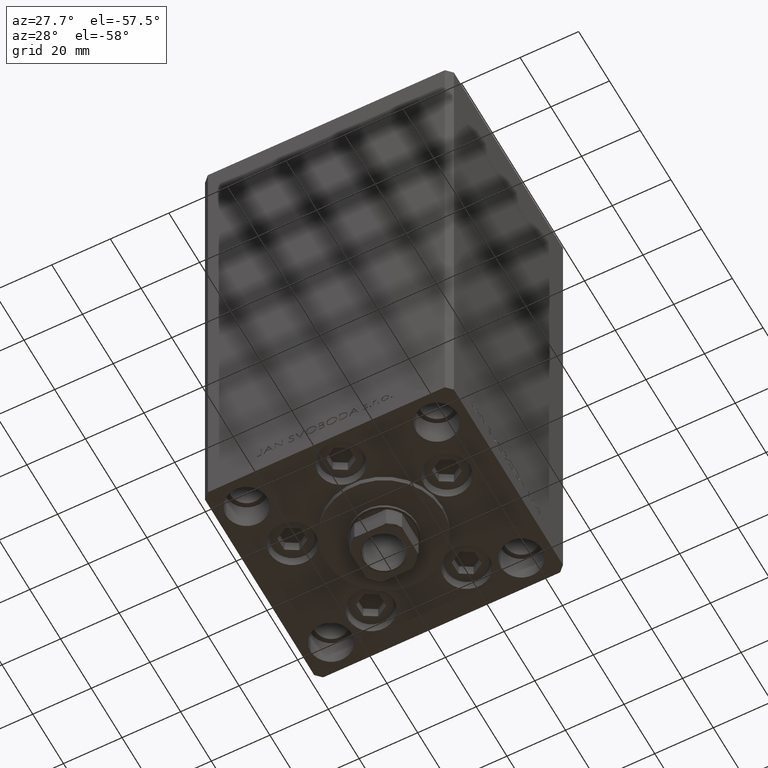
[diagram: clean part render]
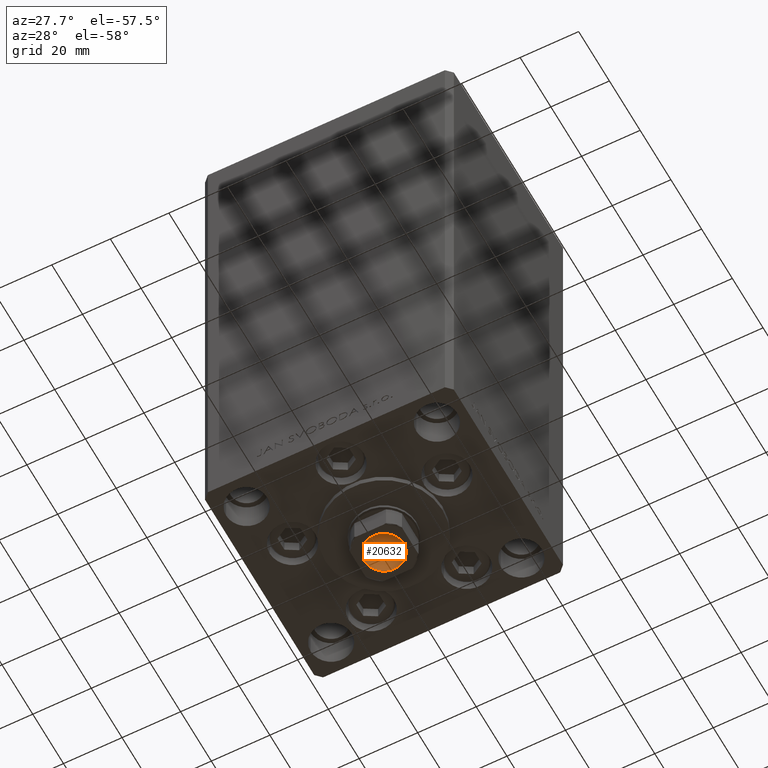
[diagram: same view with one face highlighted and labeled with its STEP entity id]
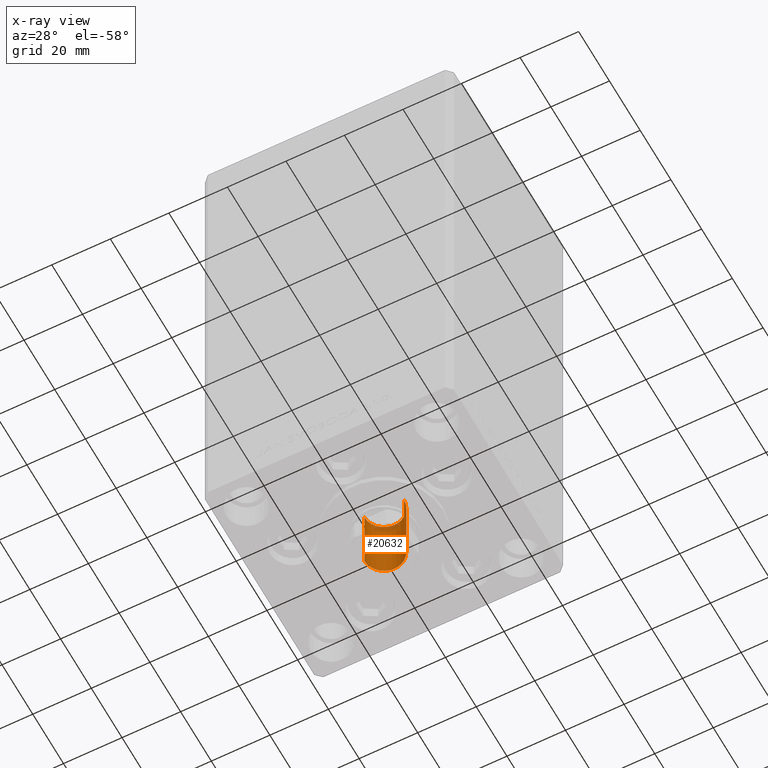
[diagram: x-ray of the same camera — body ghosted, the highlighted face saturated]
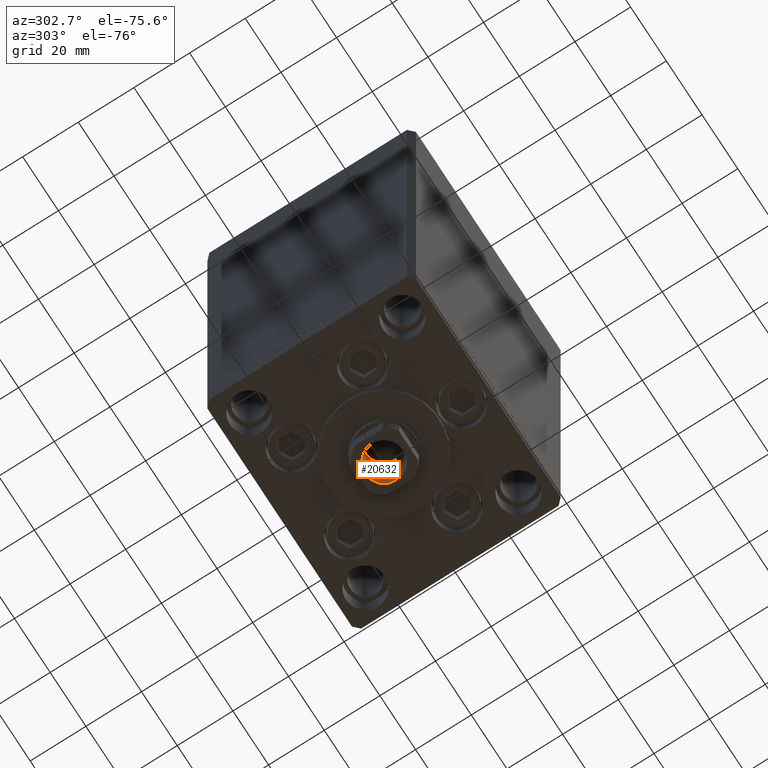
[diagram: same view with one face highlighted and labeled with its STEP entity id]
A machine part, auxiliary view. The second image highlights one B-rep face of the part: STEP entity #20632.
The next image is the same camera in x-ray: the body ghosted, the highlighted face saturated — about 7% of this face is hidden behind the body in this view.
A second angle (auxiliary view) of the same face is appended — the face is thin or edge-on in the first view.
In plain terms, the highlighted cylindrical surface (edge-blend (fillet) strip) has radius 6.75 mm, axis along (0, 0, -1).
Its self-contained STEP definition (entity closure, byte-faithful):
#116 = VECTOR ( 'NONE', #21271, 1000.000000000000000 ) ;
#507 = VERTEX_POINT ( 'NONE', #12687 ) ;
#677 = VERTEX_POINT ( 'NONE', #25546 ) ;
#1867 = AXIS2_PLACEMENT_3D ( 'NONE', #47620, #10017, #6305 ) ;
#4547 = AXIS2_PLACEMENT_3D ( 'NONE', #22274, #26723, #30448 ) ;
#4986 = DIRECTION ( 'NONE',  ( 1.000000000000000000, 0.000000000000000000, 0.000000000000000000 ) ) ;
#6305 = DIRECTION ( 'NONE',  ( 1.000000000000000000, 0.000000000000000000, 0.000000000000000000 ) ) ;
#6969 = EDGE_CURVE ( 'NONE', #507, #20376, #41394, .T. ) ;
#9183 = EDGE_CURVE ( 'NONE', #19837, #20376, #38779, .T. ) ;
#10017 = DIRECTION ( 'NONE',  ( 0.000000000000000000, 0.000000000000000000, 1.000000000000000000 ) ) ;
#10136 = LINE ( 'NONE', #44282, #116 ) ;
#12687 = CARTESIAN_POINT ( 'NONE',  ( 6.749999999999995559, 0.000000000000000000, 155.4499999999999886 ) ) ;
#18043 = ORIENTED_EDGE ( 'NONE', *, *, #6969, .T. ) ;
#19837 = VERTEX_POINT ( 'NONE', #44905 ) ;
#20376 = VERTEX_POINT ( 'NONE', #46300 ) ;
#20632 = ADVANCED_FACE ( 'NONE', ( #26489 ), #41577, .F. ) ;
#21271 = DIRECTION ( 'NONE',  ( -0.000000000000000000, -0.000000000000000000, 1.000000000000000000 ) ) ;
#22274 = CARTESIAN_POINT ( 'NONE',  ( 0.000000000000000000, 0.000000000000000000, 155.7500000000000000 ) ) ;
#24650 = ORIENTED_EDGE ( 'NONE', *, *, #36742, .F. ) ;
#25546 = CARTESIAN_POINT ( 'NONE',  ( 6.749999999999993783, 0.000000000000000000, 130.7500000000000000 ) ) ;
#26489 = FACE_OUTER_BOUND ( 'NONE', #33108, .T. ) ;
#26723 = DIRECTION ( 'NONE',  ( -0.000000000000000000, -0.000000000000000000, 1.000000000000000000 ) ) ;
#27648 = CARTESIAN_POINT ( 'NONE',  ( -6.749999999999995559, 8.266365894244628417E-16, 155.7500000000000000 ) ) ;
#30448 = DIRECTION ( 'NONE',  ( 1.000000000000000000, 0.000000000000000000, 0.000000000000000000 ) ) ;
#33108 = EDGE_LOOP ( 'NONE', ( #35012, #24650, #42806, #18043 ) ) ;
#33988 = CIRCLE ( 'NONE', #36364, 6.749999999999993783 ) ;
#34588 = DIRECTION ( 'NONE',  ( -0.000000000000000000, -0.000000000000000000, 1.000000000000000000 ) ) ;
#34696 = DIRECTION ( 'NONE',  ( -0.000000000000000000, -0.000000000000000000, 1.000000000000000000 ) ) ;
#34937 = CARTESIAN_POINT ( 'NONE',  ( 0.000000000000000000, 0.000000000000000000, 130.7500000000000000 ) ) ;
#35012 = ORIENTED_EDGE ( 'NONE', *, *, #9183, .F. ) ;
#35142 = VECTOR ( 'NONE', #34588, 1000.000000000000000 ) ;
#36364 = AXIS2_PLACEMENT_3D ( 'NONE', #34937, #34696, #4986 ) ;
#36742 = EDGE_CURVE ( 'NONE', #677, #19837, #33988, .T. ) ;
#38779 = LINE ( 'NONE', #27648, #35142 ) ;
#40953 = EDGE_CURVE ( 'NONE', #677, #507, #10136, .T. ) ;
#41394 = CIRCLE ( 'NONE', #1867, 6.749999999999995559 ) ;
#41577 = CYLINDRICAL_SURFACE ( 'NONE', #4547, 6.749999999999995559 ) ;
#42806 = ORIENTED_EDGE ( 'NONE', *, *, #40953, .T. ) ;
#44282 = CARTESIAN_POINT ( 'NONE',  ( 6.749999999999995559, 0.000000000000000000, 155.7500000000000000 ) ) ;
#44905 = CARTESIAN_POINT ( 'NONE',  ( -6.749999999999993783, 8.266365894244626445E-16, 130.7500000000000000 ) ) ;
#46300 = CARTESIAN_POINT ( 'NONE',  ( -6.749999999999995559, 8.266365894244628417E-16, 155.4499999999999886 ) ) ;
#47620 = CARTESIAN_POINT ( 'NONE',  ( 0.000000000000000000, 0.000000000000000000, 155.4499999999999886 ) ) ;